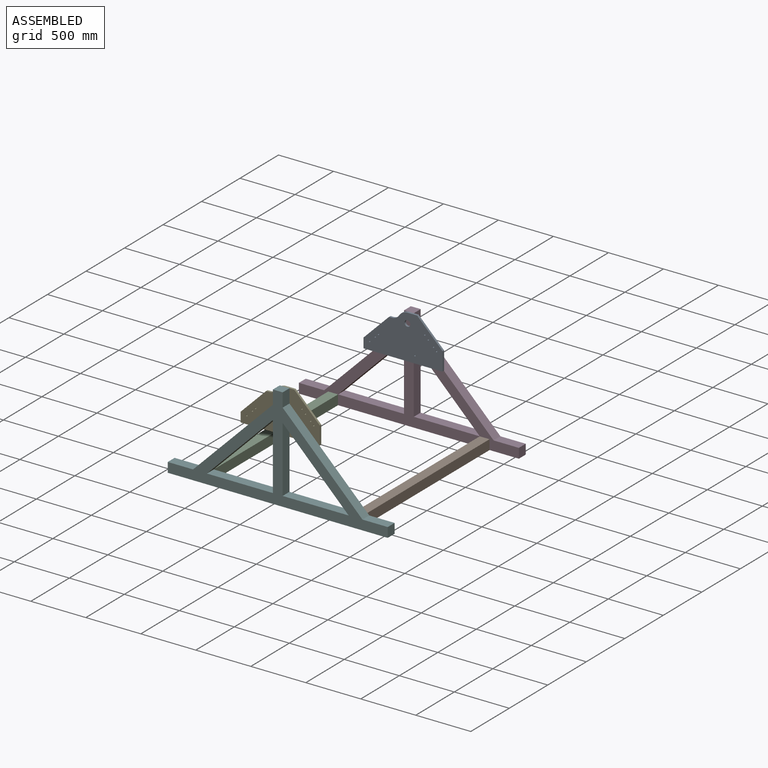
[diagram: assembled view]
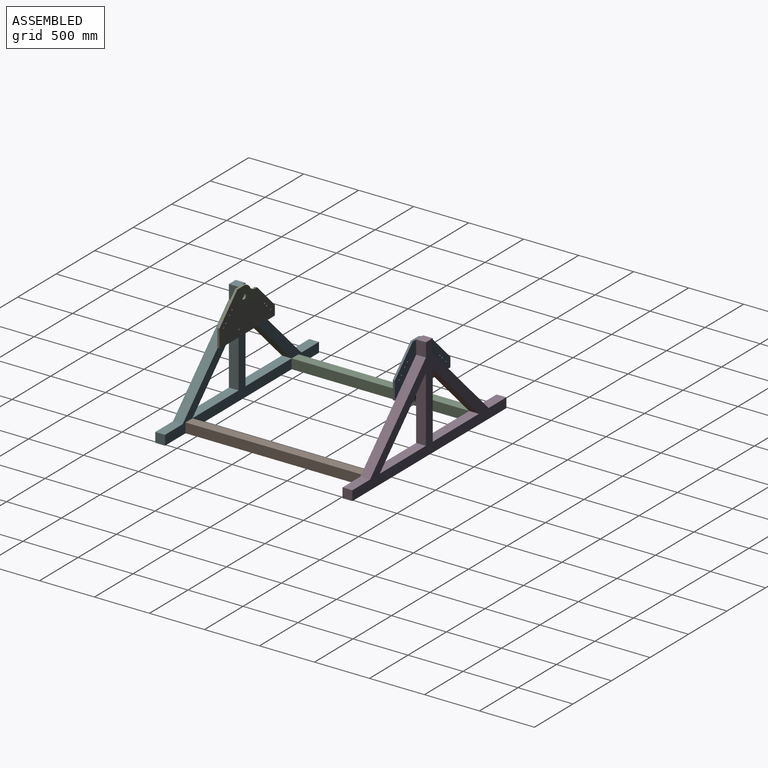
[diagram: assembled view, second angle]
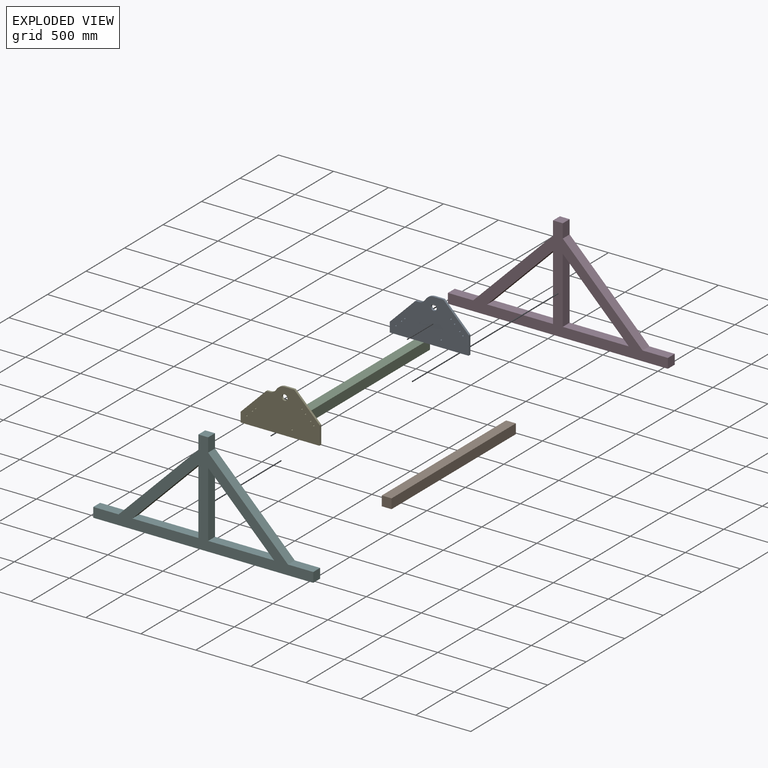
[diagram: exploded view]
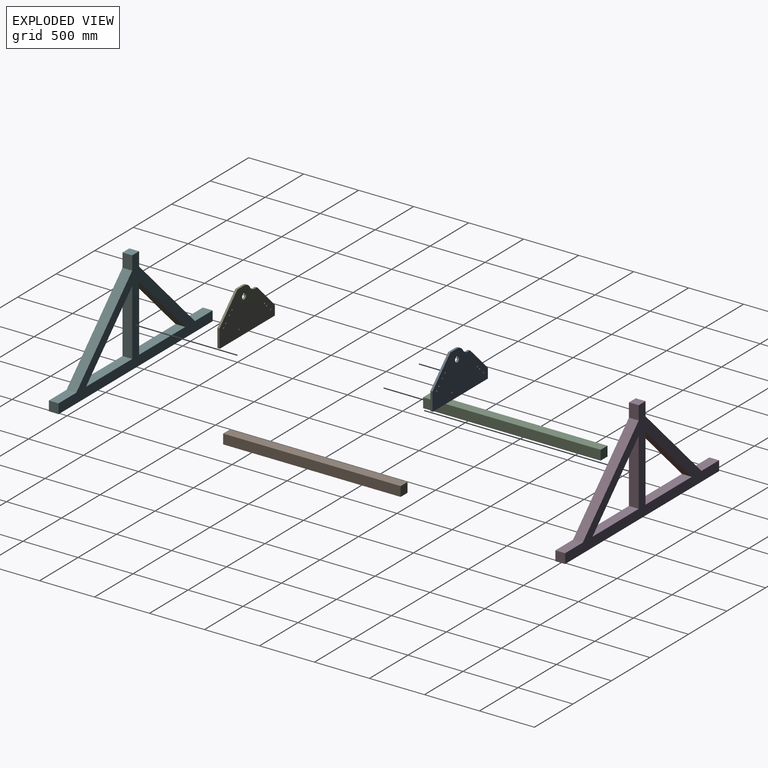
[diagram: exploded view, second angle]
ASSEMBLY  parts=6 mates=5
PART A: 26 faces, bbox 720x19.1x400 mm
  f0: plane 81.09x19.05mm, normal (-1,0,0), area 1544.7mm2, adj f4,f5,f21,f25
  f1: plane 86.09x19.05mm, normal (0,0,1), area 1640mm2, adj f4,f5,f17,f22
  f2: plane 161.09x19.05mm, normal (1,0,0), area 3068.7mm2, adj f4,f5,f23,f24
  f3: plane 710x19.05mm, normal (0,0,-1), area 13525.5mm2, adj f4,f5,f24,f25
  f4: plane 720x400mm, normal (0,1,0), area 204885.1mm2, adj f0,f1,f2,f3,f6,f7,f8,f9
  f5: plane 720x400mm, normal (0,-1,0), area 204885.1mm2, adj f0,f1,f2,f3,f6,f7,f8,f9
  f6: cylinder r=26.5mm len=53mm, axis (0,1,0), area 3171.9mm2, adj f4,f5
  f7: plane 228.91x228.91mm, normal (0.71,0,0.71), area 6167.1mm2, adj f4,f5,f22,f23
  f8: cylinder r=6.35mm len=19.05mm, axis (0,1,0), area 760.1mm2, adj f4,f5
  f9: cylinder r=6.35mm len=19.05mm, axis (0,1,0), area 760.1mm2, adj f4,f5
  f10: cylinder r=6.35mm len=19.05mm, axis (0,1,0), area 760.1mm2, adj f4,f5
  f11: cylinder r=6.35mm len=19.05mm, axis (0,1,0), area 760.1mm2, adj f4,f5
  f12: plane 229.88x229.88mm, normal (-0.71,0,0.71), area 6193.1mm2, adj f4,f5,f20,f21
  f13: cylinder r=6.35mm len=19.05mm, axis (0,1,0), area 760.1mm2, adj f4,f5
  f14: cylinder r=6.35mm len=19.05mm, axis (0,1,0), area 760.1mm2, adj f4,f5
  f15: cylinder r=6.35mm len=19.05mm, axis (0,1,0), area 760.1mm2, adj f4,f5
  f16: cylinder r=6.35mm len=19.05mm, axis (0,1,0), area 760.1mm2, adj f4,f5
  f17: cylinder r=88.9mm len=76.68mm, axis (0,1,0), area 1761.7mm2, adj f1,f4,f5,f18
  f18: cylinder r=71.1mm len=61.32mm, axis (0,1,0), area 1408.9mm2, adj f4,f5,f17,f19
  f19: plane 27.12x19.05mm, normal (0,0,1), area 516.6mm2, adj f4,f5,f18,f20
  f20: cylinder r=5mm len=19.05mm, axis (0,1,0), area 74.8mm2, adj f4,f5,f12,f19
  f21: cylinder r=5mm len=19.05mm, axis (0,1,0), area 74.8mm2, adj f0,f4,f5,f12
  f22: cylinder r=5mm len=19.05mm, axis (0,1,0), area 74.8mm2, adj f1,f4,f5,f7
  f23: cylinder r=5mm len=19.05mm, axis (0,-1,0), area 74.8mm2, adj f2,f4,f5,f7
  f24: cylinder r=5mm len=19.05mm, axis (0,1,0), area 149.6mm2, adj f2,f3,f4,f5
  f25: cylinder r=5mm len=19.05mm, axis (0,-1,0), area 149.6mm2, adj f0,f3,f4,f5
PART B: 6 faces, bbox 88.9x1614.1x88.9 mm
  f0: plane 88.9x88.9mm, normal (0,1,0), area 7903.2mm2, adj f1,f2,f3,f4
  f1: plane 1614.1x88.9mm, normal (-1,0,0), area 143493.5mm2, adj f0,f2,f4,f5
  f2: plane 1614.1x88.9mm, normal (0,0,1), area 143493.5mm2, adj f0,f1,f3,f5
  f3: plane 1614.1x88.9mm, normal (1,0,0), area 143493.5mm2, adj f0,f2,f4,f5
  f4: plane 1614.1x88.9mm, normal (0,0,-1), area 143493.5mm2, adj f0,f1,f3,f5
  f5: plane 88.9x88.9mm, normal (0,-1,0), area 7903.2mm2, adj f1,f2,f3,f4
PART C: 6 faces, bbox 88.9x1614.1x88.9 mm
  f0: plane 88.9x88.9mm, normal (0,1,0), area 7903.2mm2, adj f1,f2,f3,f4
  f1: plane 1614.1x88.9mm, normal (0,0,1), area 143493.5mm2, adj f0,f2,f4,f5
  f2: plane 1614.1x88.9mm, normal (1,0,0), area 143493.5mm2, adj f0,f1,f3,f5
  f3: plane 1614.1x88.9mm, normal (0,0,-1), area 143493.5mm2, adj f0,f2,f4,f5
  f4: plane 1614.1x88.9mm, normal (-1,0,0), area 143493.5mm2, adj f0,f1,f3,f5
  f5: plane 88.9x88.9mm, normal (0,-1,0), area 7903.2mm2, adj f1,f2,f3,f4
PART D: 18 faces, bbox 2000x88.9x940 mm
  f0: plane 125.38x88.9mm, normal (-1,0,0), area 11146mm2, adj f1,f15,f16,f17
  f1: plane 725.72x725.72mm, normal (-0.71,0,0.71), area 91240.6mm2, adj f0,f2,f16,f17
  f2: plane 229.83x88.9mm, normal (0,0,1), area 20431.6mm2, adj f1,f3,f16,f17
  f3: plane 88.9x88.9mm, normal (-1,0,0), area 7903.2mm2, adj f2,f4,f16,f17
  f4: plane 2000x88.9mm, normal (0,0,-1), area 177800mm2, adj f3,f5,f16,f17
  f5: plane 88.9x88.9mm, normal (1,0,0), area 7903.2mm2, adj f4,f6,f16,f17
  f6: plane 229.83x88.9mm, normal (0,0,1), area 20431.6mm2, adj f5,f7,f16,f17
  f7: plane 725.72x725.72mm, normal (0.71,0,0.71), area 91240.6mm2, adj f6,f8,f16,f17
  f8: plane 125.38x88.9mm, normal (1,0,0), area 11146mm2, adj f7,f15,f16,f17
  f9: plane 600x600mm, normal (0.71,0,-0.71), area 75434.2mm2, adj f10,f13,f16,f17
  f10: plane 600x88.9mm, normal (-1,0,0), area 53340mm2, adj f9,f13,f16,f17
  f11: plane 600x88.9mm, normal (1,0,0), area 53340mm2, adj f12,f14,f16,f17
  f12: plane 600x600mm, normal (-0.71,0,-0.71), area 75434.2mm2, adj f11,f14,f16,f17
  f13: plane 600x88.9mm, normal (0,0,1), area 53340mm2, adj f9,f10,f16,f17
  f14: plane 600x88.9mm, normal (0,0,1), area 53340mm2, adj f11,f12,f16,f17
  f15: plane 88.9x88.9mm, normal (0,0,1), area 7903.2mm2, adj f0,f8,f16,f17
  f16: plane 2000x940mm, normal (0,1,0), area 420137.5mm2, adj f0,f1,f2,f3,f4,f5,f6,f7
  f17: plane 2000x940mm, normal (0,-1,0), area 420137.5mm2, adj f0,f1,f2,f3,f4,f5,f6,f7
PART E: same geometry as A
PART F: 18 faces, bbox 2000x88.9x940 mm
  f0: plane 125.38x88.9mm, normal (-1,0,0), area 11146mm2, adj f1,f15,f16,f17
  f1: plane 725.72x725.72mm, normal (-0.71,0,0.71), area 91240.6mm2, adj f0,f2,f16,f17
  f2: plane 229.83x88.9mm, normal (0,0,1), area 20431.6mm2, adj f1,f3,f16,f17
  f3: plane 88.9x88.9mm, normal (-1,0,0), area 7903.2mm2, adj f2,f4,f16,f17
  f4: plane 2000x88.9mm, normal (0,0,-1), area 177800mm2, adj f3,f5,f16,f17
  f5: plane 88.9x88.9mm, normal (1,0,0), area 7903.2mm2, adj f4,f6,f16,f17
  f6: plane 229.83x88.9mm, normal (0,0,1), area 20431.6mm2, adj f5,f7,f16,f17
  f7: plane 725.72x725.72mm, normal (0.71,0,0.71), area 91240.6mm2, adj f6,f8,f16,f17
  f8: plane 125.38x88.9mm, normal (1,0,0), area 11146mm2, adj f7,f15,f16,f17
  f9: plane 600x600mm, normal (0.71,0,-0.71), area 75434.2mm2, adj f10,f13,f16,f17
  f10: plane 600x88.9mm, normal (-1,0,0), area 53340mm2, adj f9,f13,f16,f17
  f11: plane 600x88.9mm, normal (1,0,0), area 53340mm2, adj f12,f14,f16,f17
  f12: plane 600x600mm, normal (-0.71,0,-0.71), area 75434.2mm2, adj f11,f14,f16,f17
  f13: plane 600x88.9mm, normal (0,0,1), area 53340mm2, adj f9,f10,f16,f17
  f14: plane 600x88.9mm, normal (0,0,1), area 53340mm2, adj f11,f12,f16,f17
  f15: plane 88.9x88.9mm, normal (0,0,1), area 7903.2mm2, adj f0,f8,f16,f17
  f16: plane 2000x940mm, normal (0,1,0), area 420137.5mm2, adj f0,f1,f2,f3,f4,f5,f6,f7
  f17: plane 2000x940mm, normal (0,-1,0), area 420137.5mm2, adj f0,f1,f2,f3,f4,f5,f6,f7
PLACE A t=(1089.44,-40.44,-240.35)mm
PLACE B t=(1089.44,-1635.39,-265.75)mm
PLACE C t=(1089.44,-1635.39,-265.75)mm
PLACE D t=(1089.44,-1635.39,-265.75)mm
PLACE E t=(1089.44,-1635.49,-240.35)mm
PLACE F t=(1089.44,-1635.39,-265.75)mm
MATE fastened F.f16 <-> E.f5  axis (0,1,0) through (1089.44,-1546.49,-119.82)mm
MATE fastened D.f17 <-> A.f4  axis (0,-1,0) through (1089.44,67.61,-119.82)mm
MATE fastened F.f16 <-> B.f5  axis (0,1,0) through (1733.89,-1546.49,-970.92)mm
MATE fastened F.f16 <-> C.f5  axis (0,1,0) through (444.99,-1546.49,-970.92)mm
MATE fastened D.f17 <-> C.f0  axis (0,-1,0) through (444.99,67.61,-970.92)mm
